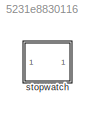
MODEL slx_5231e8830116
KIND library
CONFIG AbsTol = auto
CONFIG EnableMultiTasking = off
CONFIG FixedStep = auto
CONFIG MaxStep = auto
CONFIG MinStep = auto
CONFIG RelTol = 1e-3
CONFIG SampleTimeConstraint = Unconstrained
CONFIG Solver = VariableStepAuto
CONFIG SolverName = VariableStepAuto
CONFIG StartTime = 0.0
CONFIG StopTime = 10.0
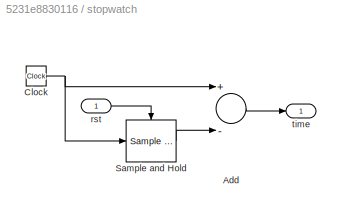
BLOCK [SubSystem] stopwatch
  Ports = [1, 1]
  RequestExecContextInheritance = off
BLOCK [Sum] stopwatch/Add
  InputSameDT = off
  Inputs = +-
  OutDataTypeStr = Inherit: Inherit via internal rule
  Ports = [2, 1]
  SaturateOnIntegerOverflow = off
BLOCK [Clock] stopwatch/Clock
BLOCK [Reference] stopwatch/Sample and Hold  REF=dspsigops/Sample
and Hold
  Ports = [1, 1, 0, 1]
  SourceBlock = dspsigops/Sample\nand Hold
  SourceProductBaseCode = DS
  SourceProductName = DSP System Toolbox
  SourceType = Sample and Hold
BLOCK [Inport] stopwatch/rst
  IconDisplay = Port number
BLOCK [Outport] stopwatch/time
  IconDisplay = Port number
LINE stopwatch/Add:1 -> stopwatch/time:1
NET stopwatch/Clock:1 -> stopwatch/Add:1, stopwatch/Sample and Hold:1
LINE stopwatch/Sample and Hold:1 -> stopwatch/Add:2
LINE stopwatch/rst:1 -> stopwatch/Sample and Hold:trigger
note: NET lines group one-source signal fan-out (src -> all destinations, sorted); 1:1 wires keep LINE
